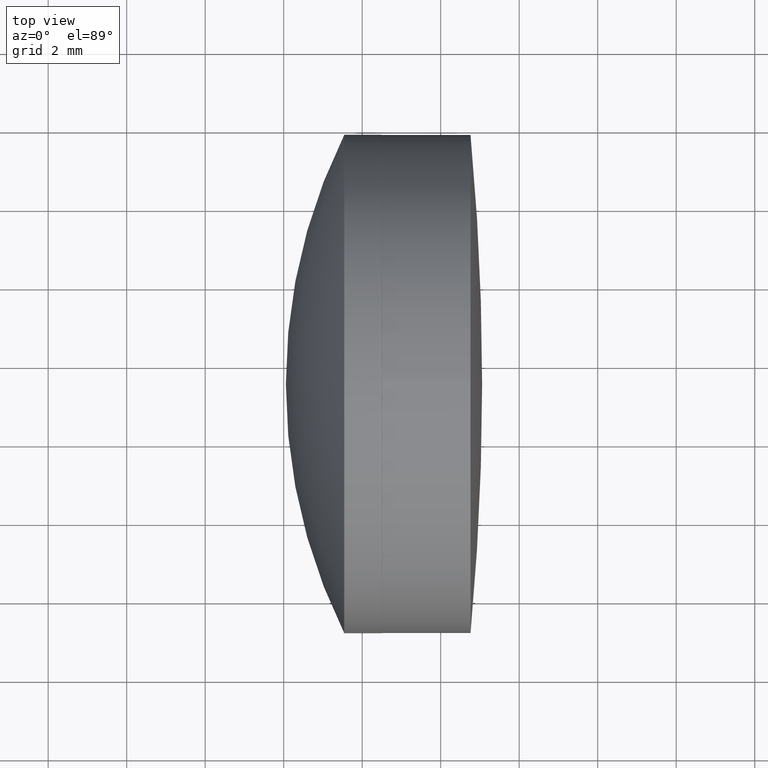
[diagram: clean part render]
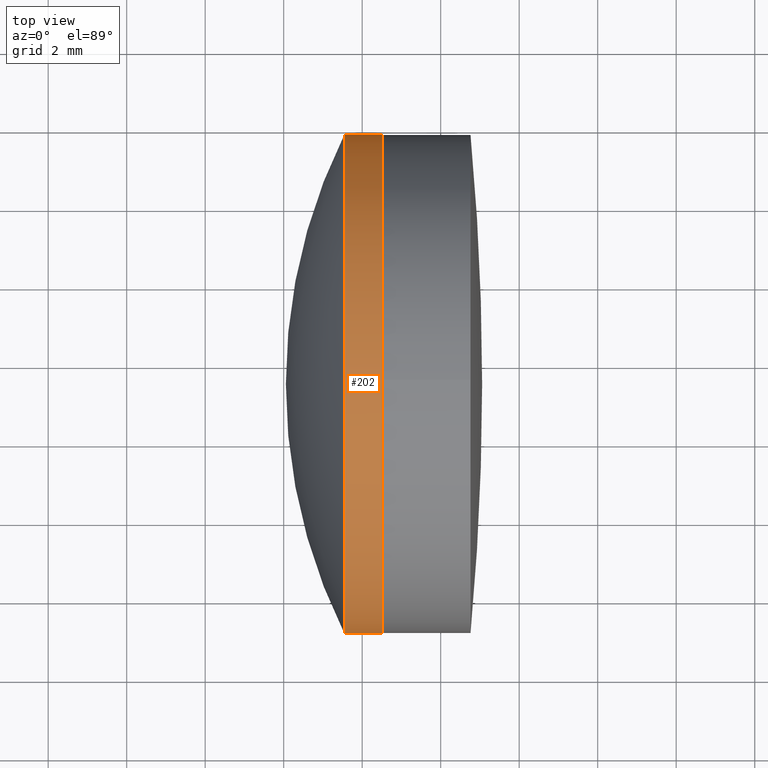
[diagram: same view with one face highlighted and labeled with its STEP entity id]
A machine part, top view. The second image highlights one B-rep face of the part: STEP entity #202.
In plain terms, the highlighted cylindrical surface (partial cylindrical patch) has radius 6.35 mm, axis along (-1, 0, 0).
Its self-contained STEP definition (entity closure, byte-faithful):
#10 = EDGE_LOOP ( 'NONE', ( #368, #64, #112, #502 ) ) ;
#20 = EDGE_CURVE ( 'NONE', #605, #71, #90, .T. ) ;
#27 = CYLINDRICAL_SURFACE ( 'NONE', #363, 6.349999999999993427 ) ;
#31 = CARTESIAN_POINT ( 'NONE',  ( -2.000000000000007105, -6.349999999999966782, 0.000000000000000000 ) ) ;
#39 = CARTESIAN_POINT ( 'NONE',  ( 0.4471741201639185537, 2.651846554929480922E-14, 0.000000000000000000 ) ) ;
#46 = CARTESIAN_POINT ( 'NONE',  ( -2.000000000000003553, 6.350000000000020961, 7.776507174585685260E-16 ) ) ;
#64 = ORIENTED_EDGE ( 'NONE', *, *, #232, .T. ) ;
#71 = VERTEX_POINT ( 'NONE', #130 ) ;
#90 = CIRCLE ( 'NONE', #452, 6.349999999999994316 ) ;
#112 = ORIENTED_EDGE ( 'NONE', *, *, #439, .F. ) ;
#130 = CARTESIAN_POINT ( 'NONE',  ( 0.4471741201639202190, 6.350000000000020961, 0.000000000000000000 ) ) ;
#196 = LINE ( 'NONE', #46, #552 ) ;
#202 = ADVANCED_FACE ( 'NONE', ( #276 ), #27, .T. ) ;
#225 = CARTESIAN_POINT ( 'NONE',  ( -2.000000000000005329, 2.713415951101113115E-14, 0.000000000000000000 ) ) ;
#228 = DIRECTION ( 'NONE',  ( -1.000000000000000000, 2.515938513092316790E-16, -0.000000000000000000 ) ) ;
#232 = EDGE_CURVE ( 'NONE', #71, #410, #196, .T. ) ;
#276 = FACE_OUTER_BOUND ( 'NONE', #10, .T. ) ;
#283 = DIRECTION ( 'NONE',  ( -1.000000000000000000, 2.515938513092316790E-16, -0.000000000000000000 ) ) ;
#301 = DIRECTION ( 'NONE',  ( -1.000000000000000000, 2.515938513092316790E-16, -0.000000000000000000 ) ) ;
#326 = DIRECTION ( 'NONE',  ( -1.000000000000000000, 2.515938513092316790E-16, -0.000000000000000000 ) ) ;
#332 = VECTOR ( 'NONE', #283, 1000.000000000000000 ) ;
#363 = AXIS2_PLACEMENT_3D ( 'NONE', #225, #590, #587 ) ;
#367 = EDGE_CURVE ( 'NONE', #605, #453, #518, .T. ) ;
#368 = ORIENTED_EDGE ( 'NONE', *, *, #20, .T. ) ;
#380 = CARTESIAN_POINT ( 'NONE',  ( -0.5116248968636704086, -6.349999999999992539, -7.776507174585689205E-16 ) ) ;
#393 = CARTESIAN_POINT ( 'NONE',  ( 0.4471741201639169438, -6.349999999999996092, -7.776507174585685260E-16 ) ) ;
#410 = VERTEX_POINT ( 'NONE', #479 ) ;
#436 = CIRCLE ( 'NONE', #635, 6.349999999999993427 ) ;
#439 = EDGE_CURVE ( 'NONE', #453, #410, #436, .T. ) ;
#452 = AXIS2_PLACEMENT_3D ( 'NONE', #39, #228, #576 ) ;
#453 = VERTEX_POINT ( 'NONE', #380 ) ;
#471 = DIRECTION ( 'NONE',  ( -2.561107494060249109E-16, -1.000000000000000000, 0.000000000000000000 ) ) ;
#479 = CARTESIAN_POINT ( 'NONE',  ( -0.5116248968636670780, 6.350000000000022737, 0.000000000000000000 ) ) ;
#502 = ORIENTED_EDGE ( 'NONE', *, *, #367, .F. ) ;
#518 = LINE ( 'NONE', #31, #332 ) ;
#552 = VECTOR ( 'NONE', #301, 1000.000000000000000 ) ;
#568 = CARTESIAN_POINT ( 'NONE',  ( -0.5116248968636686323, 2.675969348662028730E-14, 0.000000000000000000 ) ) ;
#576 = DIRECTION ( 'NONE',  ( -2.475737244258240576E-16, -1.000000000000000000, 0.000000000000000000 ) ) ;
#587 = DIRECTION ( 'NONE',  ( -2.731847993664266177E-16, -1.000000000000000000, 0.000000000000000000 ) ) ;
#590 = DIRECTION ( 'NONE',  ( -1.000000000000000000, 2.515938513092316790E-16, -0.000000000000000000 ) ) ;
#605 = VERTEX_POINT ( 'NONE', #393 ) ;
#635 = AXIS2_PLACEMENT_3D ( 'NONE', #568, #326, #471 ) ;